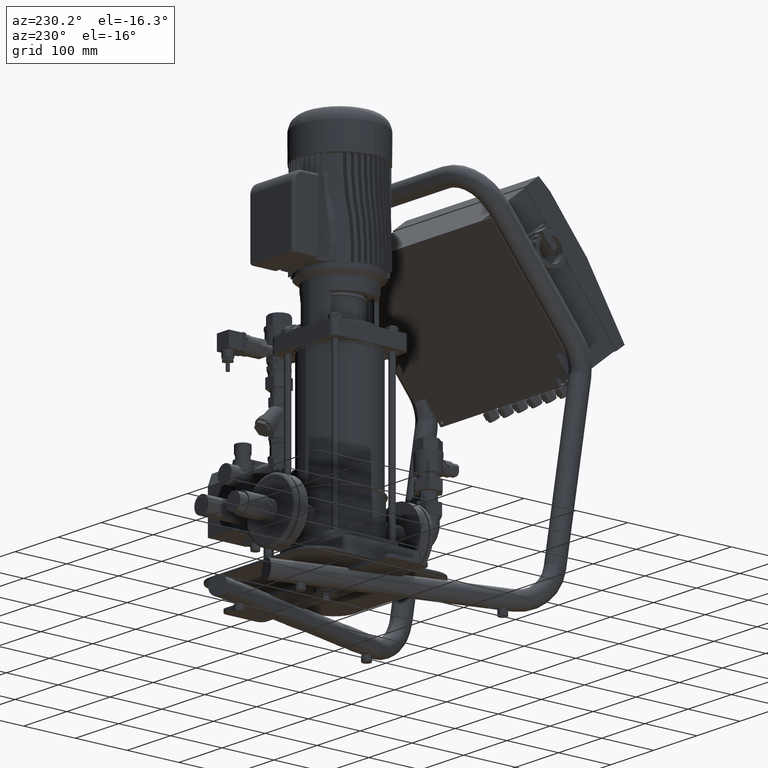
[diagram: clean part render]
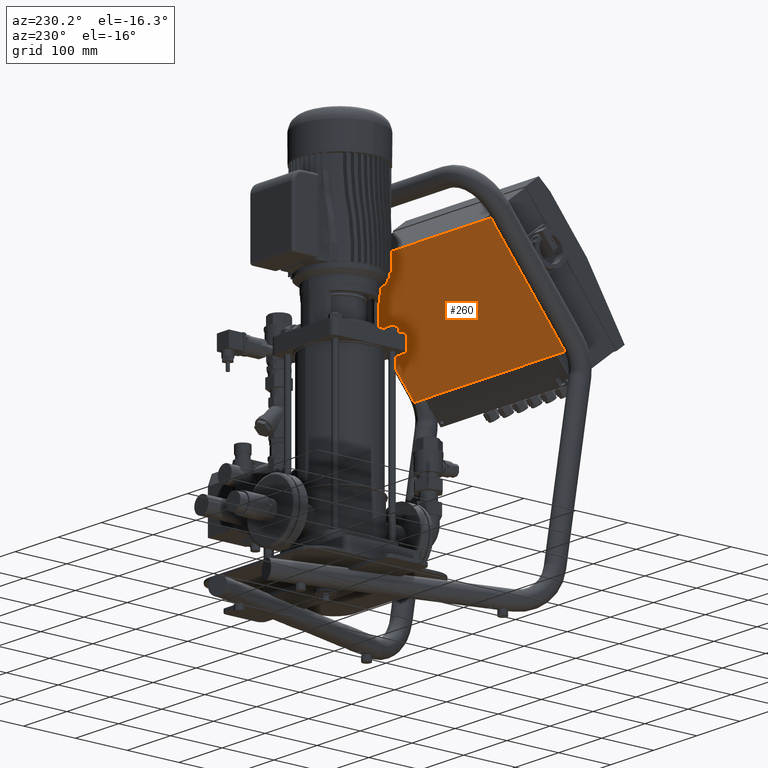
[diagram: same view with one face highlighted and labeled with its STEP entity id]
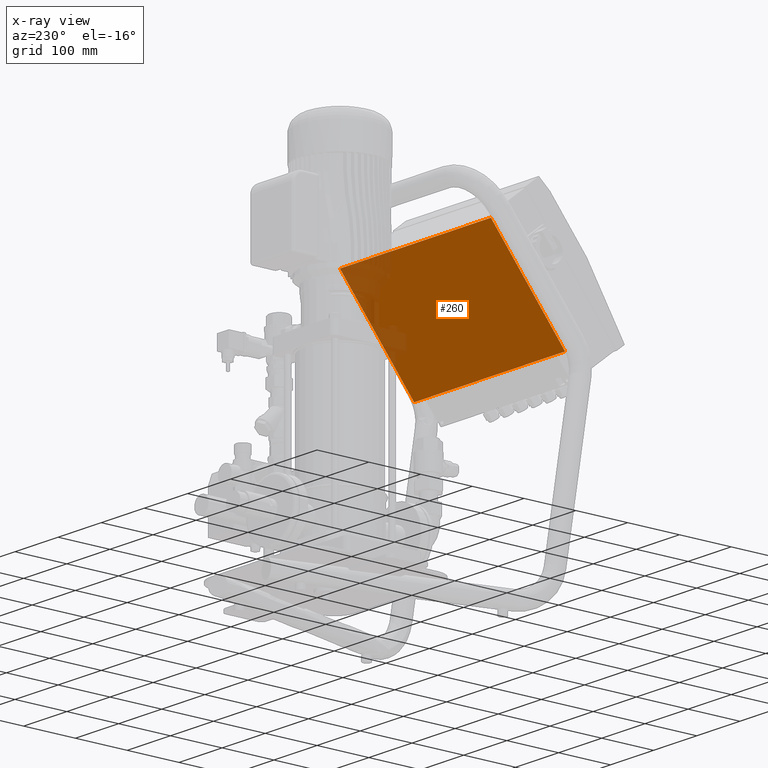
[diagram: x-ray of the same camera — body ghosted, the highlighted face saturated]
A machine part, auxiliary view. The second image highlights one B-rep face of the part: STEP entity #260.
The next image is the same camera in x-ray: the body ghosted, the highlighted face saturated — about 11% of this face is hidden behind the body in this view.
In plain terms, the highlighted planar face has unit normal (0, 0.7821, -0.6231).
Its self-contained STEP definition (entity closure, byte-faithful):
#130=CARTESIAN_POINT('',(-175.000000000000060,-173.290728119397040,605.402129754597130));
#131=VERTEX_POINT('',#130);
#132=CARTESIAN_POINT('',(-175.000000000000090,-316.611513462609990,425.515630848746180));
#133=VERTEX_POINT('',#132);
#134=CARTESIAN_POINT('',(-175.000000000000060,-173.290728119397040,605.402129754597130));
#135=DIRECTION('',(-1.235726E-016,-0.623133849318317,-0.782115212634134));
#136=VECTOR('',#135,230.000000000000090);
#137=LINE('',#134,#136);
#138=EDGE_CURVE('',#131,#133,#137,.T.);
#170=CARTESIAN_POINT('',(174.999999999999910,-316.611513462610110,425.515630848746180));
#171=VERTEX_POINT('',#170);
#172=CARTESIAN_POINT('',(-175.000000000000090,-316.611513462609990,425.515630848746180));
#173=DIRECTION('',(1.0,0.0,0.0));
#174=VECTOR('',#173,350.0);
#175=LINE('',#172,#174);
#176=EDGE_CURVE('',#133,#171,#175,.T.);
#201=CARTESIAN_POINT('',(174.999999999999940,-173.290728119397130,605.402129754597130));
#202=VERTEX_POINT('',#201);
#203=CARTESIAN_POINT('',(174.999999999999910,-316.611513462610110,425.515630848746180));
#204=DIRECTION('',(1.235726E-016,0.623133849318317,0.782115212634134));
#205=VECTOR('',#204,230.000000000000090);
#206=LINE('',#203,#205);
#207=EDGE_CURVE('',#171,#202,#206,.T.);
#232=CARTESIAN_POINT('',(174.999999999999940,-173.290728119397130,605.402129754597130));
#233=DIRECTION('',(-1.0,0.0,0.0));
#234=VECTOR('',#233,350.0);
#235=LINE('',#232,#234);
#236=EDGE_CURVE('',#202,#131,#235,.T.);
#249=CARTESIAN_POINT('',(-7.105427E-014,-244.951120791003550,515.458880301671570));
#250=DIRECTION('',(1.436722E-016,0.782115212634134,-0.623133849318317));
#251=DIRECTION('',(-1.0,0.0,0.0));
#252=AXIS2_PLACEMENT_3D('',#249,#250,#251);
#253=PLANE('',#252);
#254=ORIENTED_EDGE('',*,*,#138,.F.);
#255=ORIENTED_EDGE('',*,*,#236,.F.);
#256=ORIENTED_EDGE('',*,*,#207,.F.);
#257=ORIENTED_EDGE('',*,*,#176,.F.);
#258=EDGE_LOOP('',(#254,#255,#256,#257));
#259=FACE_OUTER_BOUND('',#258,.T.);
#260=ADVANCED_FACE('',(#259),#253,.T.);